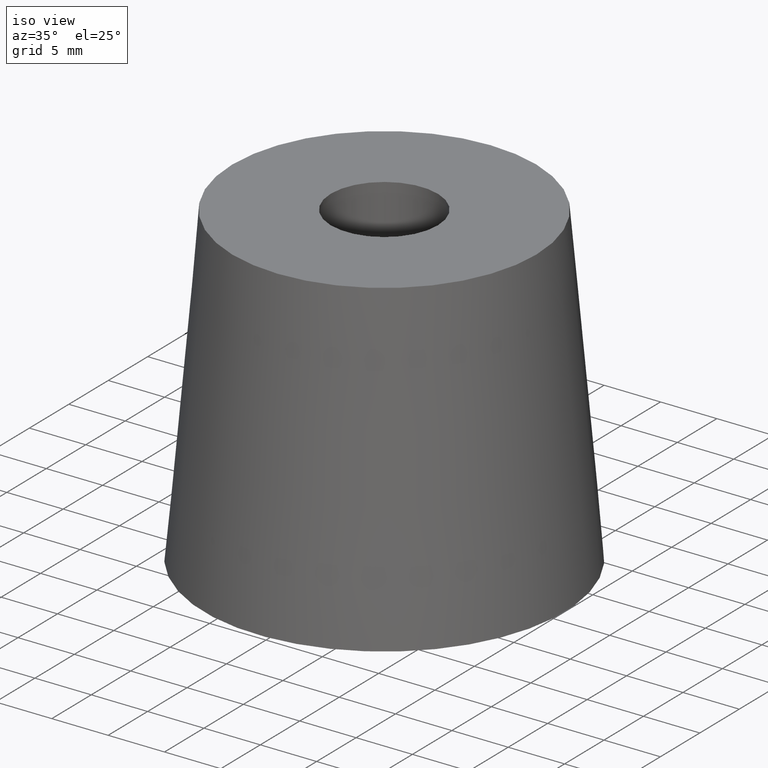
[diagram: clean part render]
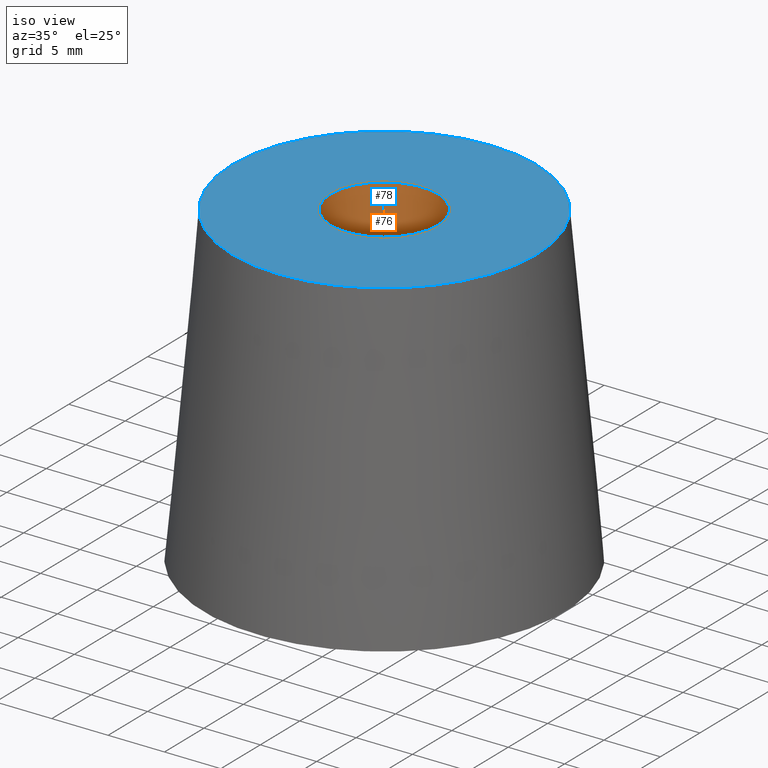
[diagram: same view with the hole feature highlighted: cylindrical wall and planar end face, labeled with their STEP entity ids]
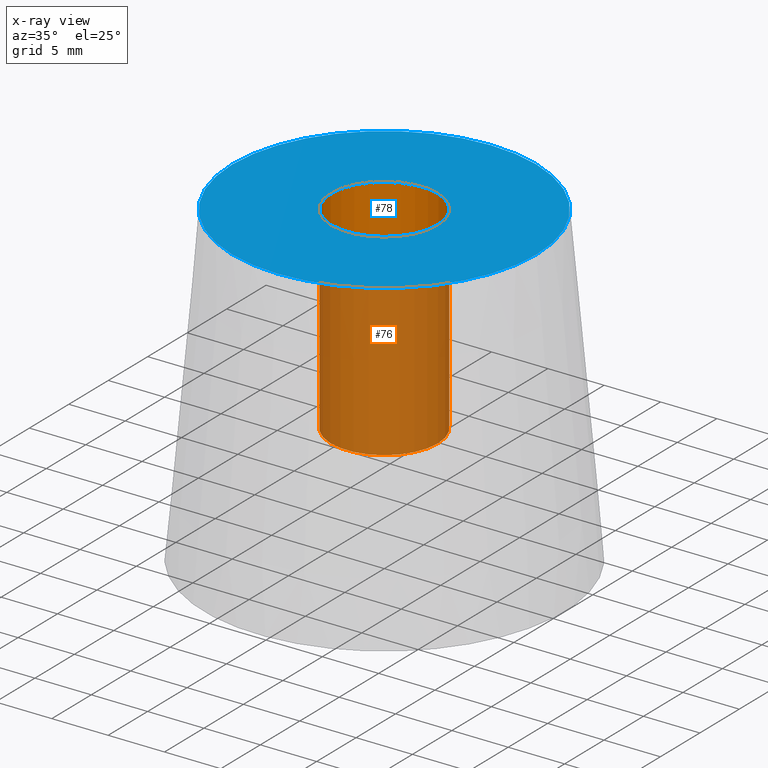
[diagram: x-ray of the same camera — body ghosted, the hole faces saturated]
A machine part, iso view. The highlighted faces form one hole feature of diameter 9.5 mm: the cylindrical wall (entity #76, orange) and its adjacent planar end face (entity #78, blue) — they share a circular edge in the B-rep.
The next image is the same camera in x-ray (body ghosted, the hole faces saturated) — the bore reads through the body.
Wall:
#16=CYLINDRICAL_SURFACE('',#86,4.75);
#19=FACE_BOUND('',#33,.T.);
#25=FACE_OUTER_BOUND('',#32,.T.);
#32=EDGE_LOOP('',(#62));
#33=EDGE_LOOP('',(#63));
#42=CIRCLE('',#84,4.75);
#44=CIRCLE('',#87,4.75);
#48=VERTEX_POINT('',#123);
#50=VERTEX_POINT('',#128);
#54=EDGE_CURVE('',#48,#48,#42,.T.);
#56=EDGE_CURVE('',#50,#50,#44,.T.);
#62=ORIENTED_EDGE('',*,*,#56,.F.);
#63=ORIENTED_EDGE('',*,*,#54,.F.);
#76=ADVANCED_FACE('',(#25,#19),#16,.F.);
#84=AXIS2_PLACEMENT_3D('',#124,#99,#100);
#86=AXIS2_PLACEMENT_3D('',#127,#103,#104);
#87=AXIS2_PLACEMENT_3D('',#129,#105,#106);
#99=DIRECTION('center_axis',(0.,0.,1.));
#100=DIRECTION('ref_axis',(1.,0.,0.));
#103=DIRECTION('center_axis',(0.,0.,1.));
#104=DIRECTION('ref_axis',(1.,0.,0.));
#105=DIRECTION('center_axis',(0.,0.,-1.));
#106=DIRECTION('ref_axis',(1.,0.,0.));
#123=CARTESIAN_POINT('',(4.75,0.,10.5));
#124=CARTESIAN_POINT('Origin',(0.,0.,10.5));
#127=CARTESIAN_POINT('Origin',(0.,0.,19.25));
#128=CARTESIAN_POINT('',(4.75,0.,28.));
#129=CARTESIAN_POINT('Origin',(0.,0.,28.));
End face:
#21=FACE_BOUND('',#37,.T.);
#27=FACE_OUTER_BOUND('',#36,.T.);
#36=EDGE_LOOP('',(#66));
#37=EDGE_LOOP('',(#67));
#44=CIRCLE('',#87,4.75);
#46=CIRCLE('',#91,13.5);
#50=VERTEX_POINT('',#128);
#52=VERTEX_POINT('',#134);
#56=EDGE_CURVE('',#50,#50,#44,.T.);
#58=EDGE_CURVE('',#52,#52,#46,.T.);
#66=ORIENTED_EDGE('',*,*,#58,.F.);
#67=ORIENTED_EDGE('',*,*,#56,.T.);
#73=PLANE('',#90);
#78=ADVANCED_FACE('',(#27,#21),#73,.F.);
#87=AXIS2_PLACEMENT_3D('',#129,#105,#106);
#90=AXIS2_PLACEMENT_3D('',#133,#111,#112);
#91=AXIS2_PLACEMENT_3D('',#135,#113,#114);
#105=DIRECTION('center_axis',(0.,0.,-1.));
#106=DIRECTION('ref_axis',(1.,0.,0.));
#111=DIRECTION('center_axis',(0.,0.,-1.));
#112=DIRECTION('ref_axis',(-1.,0.,0.));
#113=DIRECTION('center_axis',(0.,0.,-1.));
#114=DIRECTION('ref_axis',(-1.,0.,0.));
#128=CARTESIAN_POINT('',(4.75,0.,28.));
#129=CARTESIAN_POINT('Origin',(0.,0.,28.));
#133=CARTESIAN_POINT('Origin',(0.,0.,28.));
#134=CARTESIAN_POINT('',(-13.5,0.,28.));
#135=CARTESIAN_POINT('Origin',(0.,0.,28.));